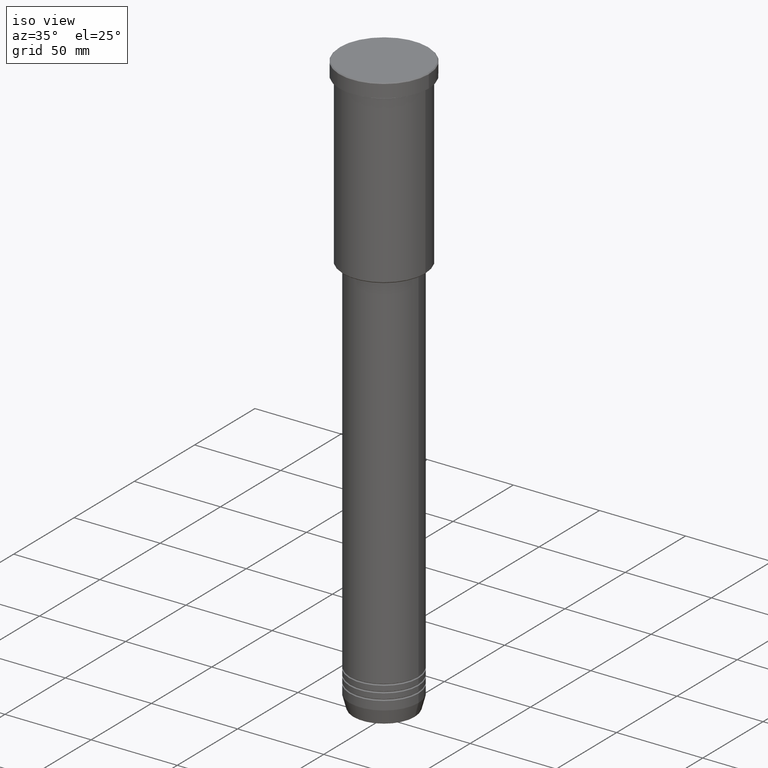
[diagram: clean part render]
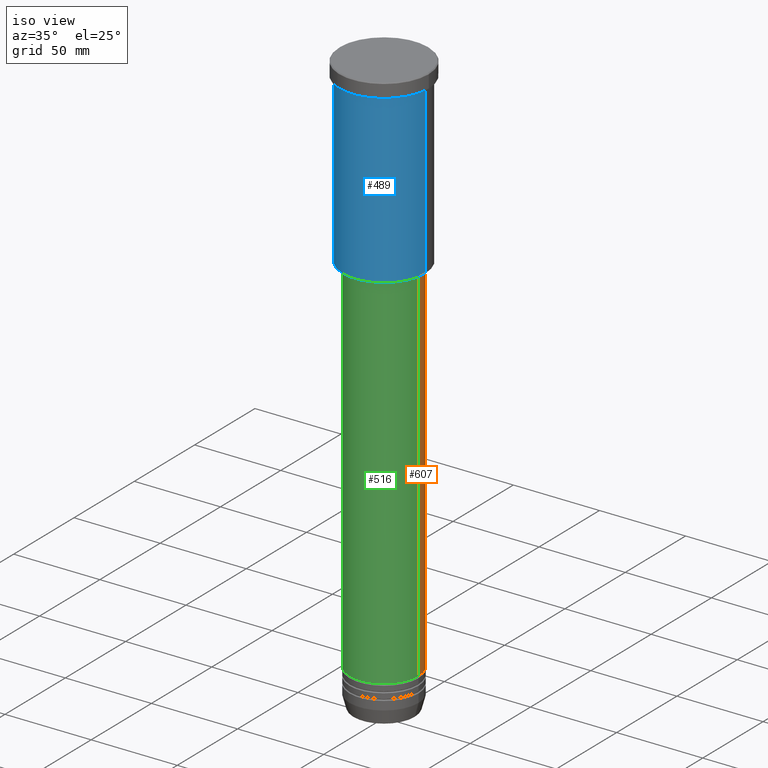
[diagram: same view with three faces highlighted in distinct colors, each labeled with its STEP entity id]
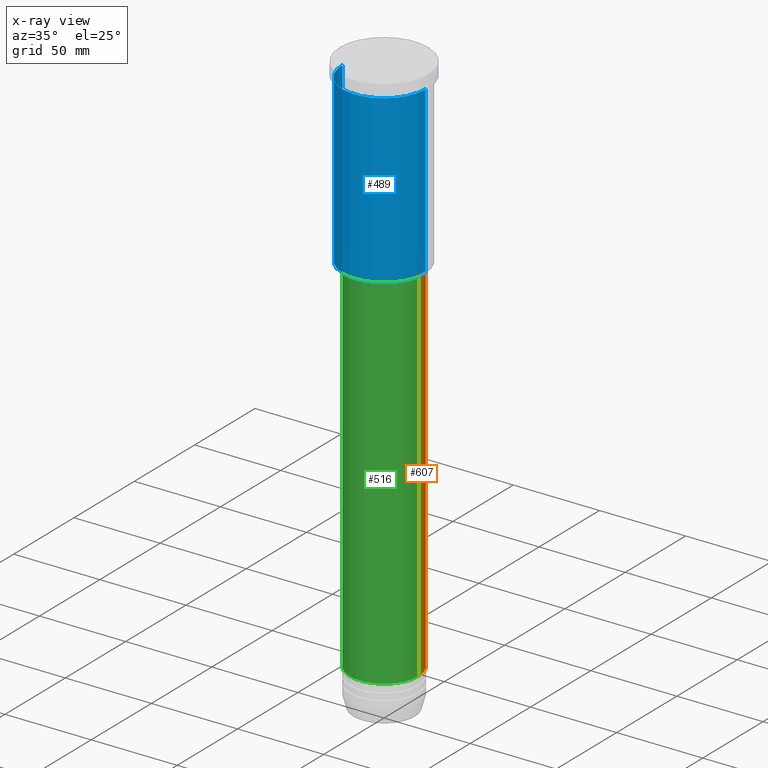
[diagram: x-ray of the same camera — body ghosted, the three highlighted faces saturated]
A machine part, iso view with three faces highlighted in distinct colors.
The next image is the same camera in x-ray (body ghosted, the three faces saturated) — at least one of them is partly hidden behind the body in this view.
Their STEP definitions:

[orange] entity #607 — the highlighted cylindrical surface (partial cylindrical patch) has radius 20 mm, axis along (-0, -0, 1).
#25 = AXIS2_PLACEMENT_3D ( 'NONE', #446, #809, #1144 ) ;
#110 = EDGE_CURVE ( 'NONE', #904, #399, #591, .T. ) ;
#162 = DIRECTION ( 'NONE',  ( -0.000000000000000000, -0.000000000000000000, 1.000000000000000000 ) ) ;
#225 = DIRECTION ( 'NONE',  ( 1.000000000000000000, 0.000000000000000000, 0.000000000000000000 ) ) ;
#252 = ORIENTED_EDGE ( 'NONE', *, *, #110, .F. ) ;
#346 = CARTESIAN_POINT ( 'NONE',  ( 0.000000000000000000, 0.000000000000000000, -318.0000000000000568 ) ) ;
#348 = FACE_OUTER_BOUND ( 'NONE', #736, .T. ) ;
#384 = EDGE_CURVE ( 'NONE', #904, #801, #553, .T. ) ;
#399 = VERTEX_POINT ( 'NONE', #973 ) ;
#428 = DIRECTION ( 'NONE',  ( -0.000000000000000000, -0.000000000000000000, 1.000000000000000000 ) ) ;
#446 = CARTESIAN_POINT ( 'NONE',  ( 0.000000000000000000, 0.000000000000000000, -106.9999999999999005 ) ) ;
#511 = CARTESIAN_POINT ( 'NONE',  ( 20.00000000000000355, 0.000000000000000000, -318.0000000000000568 ) ) ;
#553 = CIRCLE ( 'NONE', #1002, 20.00000000000000355 ) ;
#591 = LINE ( 'NONE', #842, #771 ) ;
#607 = ADVANCED_FACE ( 'NONE', ( #348 ), #879, .T. ) ;
#633 = EDGE_CURVE ( 'NONE', #399, #685, #958, .T. ) ;
#653 = AXIS2_PLACEMENT_3D ( 'NONE', #719, #162, #225 ) ;
#685 = VERTEX_POINT ( 'NONE', #993 ) ;
#719 = CARTESIAN_POINT ( 'NONE',  ( 0.000000000000000000, 0.000000000000000000, 0.000000000000000000 ) ) ;
#736 = EDGE_LOOP ( 'NONE', ( #755, #1039, #1031, #252 ) ) ;
#755 = ORIENTED_EDGE ( 'NONE', *, *, #384, .T. ) ;
#771 = VECTOR ( 'NONE', #1062, 1000.000000000000000 ) ;
#801 = VERTEX_POINT ( 'NONE', #1082 ) ;
#809 = DIRECTION ( 'NONE',  ( -0.000000000000000000, -0.000000000000000000, 1.000000000000000000 ) ) ;
#842 = CARTESIAN_POINT ( 'NONE',  ( 20.00000000000000355, 0.000000000000000000, 0.000000000000000000 ) ) ;
#879 = CYLINDRICAL_SURFACE ( 'NONE', #653, 20.00000000000000355 ) ;
#904 = VERTEX_POINT ( 'NONE', #511 ) ;
#928 = CARTESIAN_POINT ( 'NONE',  ( -20.00000000000000355, 2.449293598294706907E-15, 0.000000000000000000 ) ) ;
#954 = DIRECTION ( 'NONE',  ( -0.000000000000000000, -0.000000000000000000, 1.000000000000000000 ) ) ;
#958 = CIRCLE ( 'NONE', #25, 20.00000000000000355 ) ;
#973 = CARTESIAN_POINT ( 'NONE',  ( 20.00000000000000355, 0.000000000000000000, -106.9999999999999005 ) ) ;
#993 = CARTESIAN_POINT ( 'NONE',  ( -20.00000000000000355, 2.449293598294706907E-15, -106.9999999999999005 ) ) ;
#1002 = AXIS2_PLACEMENT_3D ( 'NONE', #346, #428, #1138 ) ;
#1031 = ORIENTED_EDGE ( 'NONE', *, *, #633, .F. ) ;
#1039 = ORIENTED_EDGE ( 'NONE', *, *, #1043, .T. ) ;
#1043 = EDGE_CURVE ( 'NONE', #801, #685, #1125, .T. ) ;
#1062 = DIRECTION ( 'NONE',  ( -0.000000000000000000, -0.000000000000000000, 1.000000000000000000 ) ) ;
#1082 = CARTESIAN_POINT ( 'NONE',  ( -20.00000000000000355, 2.449293598294706907E-15, -318.0000000000000568 ) ) ;
#1125 = LINE ( 'NONE', #928, #1171 ) ;
#1138 = DIRECTION ( 'NONE',  ( 1.000000000000000000, 0.000000000000000000, 0.000000000000000000 ) ) ;
#1144 = DIRECTION ( 'NONE',  ( 1.000000000000000000, 0.000000000000000000, 0.000000000000000000 ) ) ;
#1171 = VECTOR ( 'NONE', #954, 1000.000000000000000 ) ;

[blue] entity #489 — the highlighted cylindrical surface (partial cylindrical patch) has radius 24 mm, axis along (-0, -0, 1).
#2 = DIRECTION ( 'NONE',  ( -0.000000000000000000, -0.000000000000000000, 1.000000000000000000 ) ) ;
#118 = DIRECTION ( 'NONE',  ( -0.000000000000000000, -0.000000000000000000, 1.000000000000000000 ) ) ;
#179 = CIRCLE ( 'NONE', #866, 24.00000000000000000 ) ;
#218 = DIRECTION ( 'NONE',  ( -1.000000000000000000, 0.000000000000000000, 0.000000000000000000 ) ) ;
#231 = VERTEX_POINT ( 'NONE', #728 ) ;
#279 = DIRECTION ( 'NONE',  ( 1.000000000000000000, 0.000000000000000000, 0.000000000000000000 ) ) ;
#281 = DIRECTION ( 'NONE',  ( -0.000000000000000000, -0.000000000000000000, 1.000000000000000000 ) ) ;
#352 = DIRECTION ( 'NONE',  ( -0.000000000000000000, -0.000000000000000000, 1.000000000000000000 ) ) ;
#361 = AXIS2_PLACEMENT_3D ( 'NONE', #779, #503, #218 ) ;
#368 = CARTESIAN_POINT ( 'NONE',  ( 0.000000000000000000, 0.000000000000000000, 0.000000000000000000 ) ) ;
#390 = ORIENTED_EDGE ( 'NONE', *, *, #926, .T. ) ;
#401 = VECTOR ( 'NONE', #2, 1000.000000000000000 ) ;
#402 = VERTEX_POINT ( 'NONE', #624 ) ;
#450 = CARTESIAN_POINT ( 'NONE',  ( -24.00000000000000000, 2.939152317953647894E-15, 0.000000000000000000 ) ) ;
#467 = CARTESIAN_POINT ( 'NONE',  ( 24.00000000000000000, 0.000000000000000000, 0.000000000000000000 ) ) ;
#486 = ORIENTED_EDGE ( 'NONE', *, *, #921, .F. ) ;
#489 = ADVANCED_FACE ( 'NONE', ( #566 ), #839, .T. ) ;
#503 = DIRECTION ( 'NONE',  ( -0.000000000000000000, -0.000000000000000000, 1.000000000000000000 ) ) ;
#566 = FACE_OUTER_BOUND ( 'NONE', #984, .T. ) ;
#570 = EDGE_CURVE ( 'NONE', #231, #1168, #916, .T. ) ;
#573 = CIRCLE ( 'NONE', #361, 24.00000000000000000 ) ;
#616 = LINE ( 'NONE', #450, #777 ) ;
#624 = CARTESIAN_POINT ( 'NONE',  ( -24.00000000000000000, 2.939152317953647894E-15, -8.999999999999994671 ) ) ;
#718 = ORIENTED_EDGE ( 'NONE', *, *, #1023, .F. ) ;
#728 = CARTESIAN_POINT ( 'NONE',  ( 24.00000000000000000, 0.000000000000000000, -105.4999999999999574 ) ) ;
#773 = ORIENTED_EDGE ( 'NONE', *, *, #570, .T. ) ;
#777 = VECTOR ( 'NONE', #281, 1000.000000000000000 ) ;
#779 = CARTESIAN_POINT ( 'NONE',  ( 0.000000000000000000, 0.000000000000000000, -105.4999999999999574 ) ) ;
#825 = VERTEX_POINT ( 'NONE', #1083 ) ;
#839 = CYLINDRICAL_SURFACE ( 'NONE', #1070, 24.00000000000000000 ) ;
#866 = AXIS2_PLACEMENT_3D ( 'NONE', #1027, #118, #279 ) ;
#916 = LINE ( 'NONE', #467, #401 ) ;
#921 = EDGE_CURVE ( 'NONE', #825, #402, #616, .T. ) ;
#926 = EDGE_CURVE ( 'NONE', #825, #231, #573, .T. ) ;
#984 = EDGE_LOOP ( 'NONE', ( #486, #390, #773, #718 ) ) ;
#1008 = CARTESIAN_POINT ( 'NONE',  ( 24.00000000000000000, 0.000000000000000000, -8.999999999999994671 ) ) ;
#1023 = EDGE_CURVE ( 'NONE', #402, #1168, #179, .T. ) ;
#1027 = CARTESIAN_POINT ( 'NONE',  ( 0.000000000000000000, 0.000000000000000000, -8.999999999999994671 ) ) ;
#1070 = AXIS2_PLACEMENT_3D ( 'NONE', #368, #352, #1086 ) ;
#1083 = CARTESIAN_POINT ( 'NONE',  ( -24.00000000000000000, 2.939152317953647894E-15, -105.4999999999999574 ) ) ;
#1086 = DIRECTION ( 'NONE',  ( 1.000000000000000000, 0.000000000000000000, 0.000000000000000000 ) ) ;
#1168 = VERTEX_POINT ( 'NONE', #1008 ) ;

[green] entity #516 — the highlighted cylindrical surface (partial cylindrical patch) has radius 20 mm, axis along (-0, -0, 1).
#80 = CARTESIAN_POINT ( 'NONE',  ( 0.000000000000000000, 0.000000000000000000, 0.000000000000000000 ) ) ;
#82 = EDGE_LOOP ( 'NONE', ( #429, #133, #577, #1179 ) ) ;
#100 = DIRECTION ( 'NONE',  ( -0.000000000000000000, -0.000000000000000000, 1.000000000000000000 ) ) ;
#110 = EDGE_CURVE ( 'NONE', #904, #399, #591, .T. ) ;
#133 = ORIENTED_EDGE ( 'NONE', *, *, #482, .T. ) ;
#158 = CIRCLE ( 'NONE', #1075, 20.00000000000000355 ) ;
#173 = CARTESIAN_POINT ( 'NONE',  ( 0.000000000000000000, 0.000000000000000000, -318.0000000000000568 ) ) ;
#251 = FACE_OUTER_BOUND ( 'NONE', #82, .T. ) ;
#273 = DIRECTION ( 'NONE',  ( -0.000000000000000000, -0.000000000000000000, 1.000000000000000000 ) ) ;
#399 = VERTEX_POINT ( 'NONE', #973 ) ;
#429 = ORIENTED_EDGE ( 'NONE', *, *, #1043, .F. ) ;
#482 = EDGE_CURVE ( 'NONE', #801, #904, #726, .T. ) ;
#507 = DIRECTION ( 'NONE',  ( 1.000000000000000000, 0.000000000000000000, 0.000000000000000000 ) ) ;
#511 = CARTESIAN_POINT ( 'NONE',  ( 20.00000000000000355, 0.000000000000000000, -318.0000000000000568 ) ) ;
#516 = ADVANCED_FACE ( 'NONE', ( #251 ), #635, .T. ) ;
#577 = ORIENTED_EDGE ( 'NONE', *, *, #110, .T. ) ;
#591 = LINE ( 'NONE', #842, #771 ) ;
#635 = CYLINDRICAL_SURFACE ( 'NONE', #941, 20.00000000000000355 ) ;
#657 = DIRECTION ( 'NONE',  ( 1.000000000000000000, 0.000000000000000000, 0.000000000000000000 ) ) ;
#685 = VERTEX_POINT ( 'NONE', #993 ) ;
#726 = CIRCLE ( 'NONE', #1018, 20.00000000000000355 ) ;
#735 = DIRECTION ( 'NONE',  ( -0.000000000000000000, -0.000000000000000000, 1.000000000000000000 ) ) ;
#771 = VECTOR ( 'NONE', #1062, 1000.000000000000000 ) ;
#801 = VERTEX_POINT ( 'NONE', #1082 ) ;
#842 = CARTESIAN_POINT ( 'NONE',  ( 20.00000000000000355, 0.000000000000000000, 0.000000000000000000 ) ) ;
#904 = VERTEX_POINT ( 'NONE', #511 ) ;
#908 = DIRECTION ( 'NONE',  ( 1.000000000000000000, 0.000000000000000000, 0.000000000000000000 ) ) ;
#920 = CARTESIAN_POINT ( 'NONE',  ( 0.000000000000000000, 0.000000000000000000, -106.9999999999999005 ) ) ;
#928 = CARTESIAN_POINT ( 'NONE',  ( -20.00000000000000355, 2.449293598294706907E-15, 0.000000000000000000 ) ) ;
#941 = AXIS2_PLACEMENT_3D ( 'NONE', #80, #273, #657 ) ;
#954 = DIRECTION ( 'NONE',  ( -0.000000000000000000, -0.000000000000000000, 1.000000000000000000 ) ) ;
#968 = EDGE_CURVE ( 'NONE', #685, #399, #158, .T. ) ;
#973 = CARTESIAN_POINT ( 'NONE',  ( 20.00000000000000355, 0.000000000000000000, -106.9999999999999005 ) ) ;
#993 = CARTESIAN_POINT ( 'NONE',  ( -20.00000000000000355, 2.449293598294706907E-15, -106.9999999999999005 ) ) ;
#1018 = AXIS2_PLACEMENT_3D ( 'NONE', #173, #735, #908 ) ;
#1043 = EDGE_CURVE ( 'NONE', #801, #685, #1125, .T. ) ;
#1062 = DIRECTION ( 'NONE',  ( -0.000000000000000000, -0.000000000000000000, 1.000000000000000000 ) ) ;
#1075 = AXIS2_PLACEMENT_3D ( 'NONE', #920, #100, #507 ) ;
#1082 = CARTESIAN_POINT ( 'NONE',  ( -20.00000000000000355, 2.449293598294706907E-15, -318.0000000000000568 ) ) ;
#1125 = LINE ( 'NONE', #928, #1171 ) ;
#1171 = VECTOR ( 'NONE', #954, 1000.000000000000000 ) ;
#1179 = ORIENTED_EDGE ( 'NONE', *, *, #968, .F. ) ;